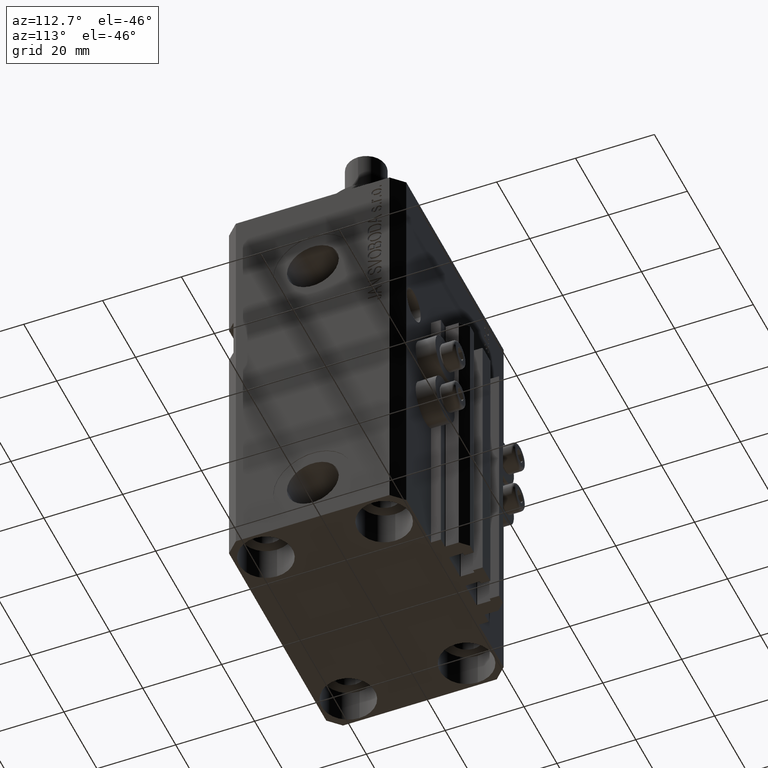
[diagram: clean part render]
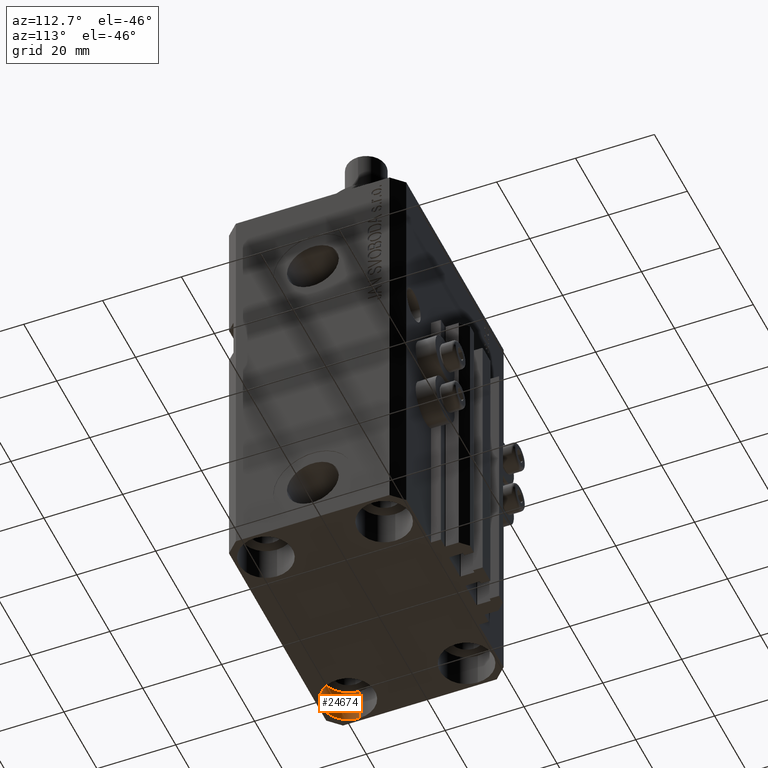
[diagram: same view with one face highlighted and labeled with its STEP entity id]
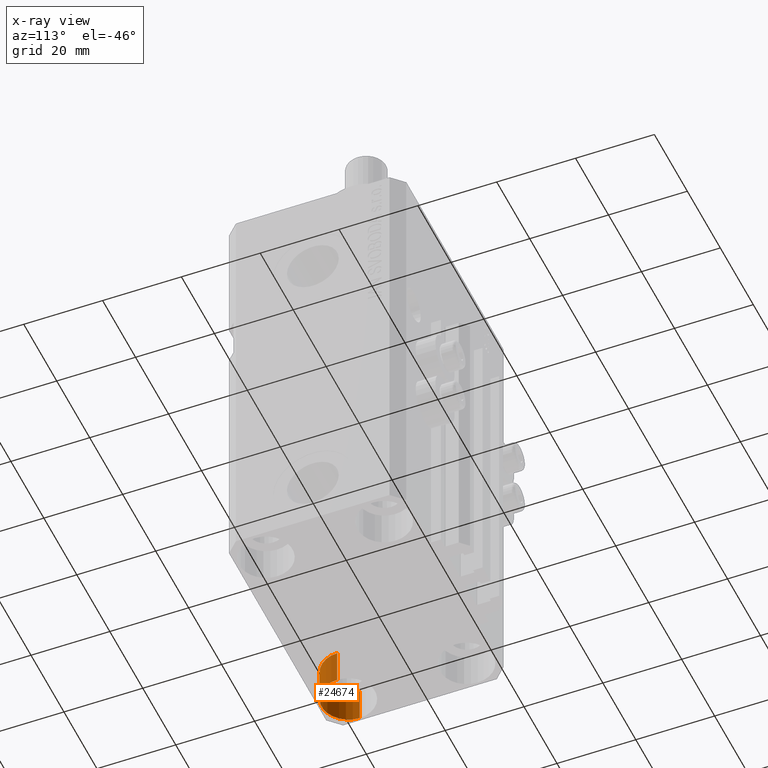
[diagram: x-ray of the same camera — body ghosted, the highlighted face saturated]
A machine part, auxiliary view. The second image highlights one B-rep face of the part: STEP entity #24674.
The next image is the same camera in x-ray: the body ghosted, the highlighted face saturated — about 0% of this face is hidden behind the body in this view.
In plain terms, the highlighted cylindrical surface (edge-blend (fillet) strip) has radius 6.75 mm, axis along (-0, -0, -1).
Its self-contained STEP definition (entity closure, byte-faithful):
#934 = DIRECTION ( 'NONE',  ( -0.000000000000000000, -0.000000000000000000, -1.000000000000000000 ) ) ;
#1125 = CARTESIAN_POINT ( 'NONE',  ( -25.00000000000000355, -15.00000000000000000, -98.00000000000000000 ) ) ;
#1412 = CARTESIAN_POINT ( 'NONE',  ( -18.24999999995846167, -15.00000000000000000, -98.00000000000000000 ) ) ;
#2086 = DIRECTION ( 'NONE',  ( -0.000000000000000000, -0.000000000000000000, -1.000000000000000000 ) ) ;
#2545 = EDGE_CURVE ( 'NONE', #9394, #34390, #28287, .T. ) ;
#5935 = EDGE_CURVE ( 'NONE', #38449, #34393, #37140, .T. ) ;
#7540 = DIRECTION ( 'NONE',  ( -0.000000000000000000, -0.000000000000000000, 1.000000000000000000 ) ) ;
#7761 = CIRCLE ( 'NONE', #13287, 6.750000000041541881 ) ;
#9197 = DIRECTION ( 'NONE',  ( -0.000000000000000000, -0.000000000000000000, 1.000000000000000000 ) ) ;
#9394 = VERTEX_POINT ( 'NONE', #12488 ) ;
#12488 = CARTESIAN_POINT ( 'NONE',  ( -18.24999999995845812, -15.00000000000000000, -98.00000000000000000 ) ) ;
#13287 = AXIS2_PLACEMENT_3D ( 'NONE', #47318, #9197, #36330 ) ;
#16377 = ORIENTED_EDGE ( 'NONE', *, *, #24947, .T. ) ;
#16653 = VECTOR ( 'NONE', #934, 1000.000000000000000 ) ;
#18352 = VECTOR ( 'NONE', #40143, 1000.000000000000000 ) ;
#18995 = DIRECTION ( 'NONE',  ( 1.000000000000000000, 0.000000000000000000, 0.000000000000000000 ) ) ;
#23543 = AXIS2_PLACEMENT_3D ( 'NONE', #1125, #2086, #35959 ) ;
#24674 = ADVANCED_FACE ( 'NONE', ( #42226 ), #43201, .F. ) ;
#24947 = EDGE_CURVE ( 'NONE', #38449, #9394, #27518, .T. ) ;
#27206 = CARTESIAN_POINT ( 'NONE',  ( -25.00000000000000355, -15.00000000000000000, -98.00000000000000000 ) ) ;
#27518 = CIRCLE ( 'NONE', #33837, 6.750000000041541881 ) ;
#28287 = LINE ( 'NONE', #1412, #16653 ) ;
#29901 = CARTESIAN_POINT ( 'NONE',  ( -31.75000000004154899, -15.00000000000000000, -98.00000000000000000 ) ) ;
#30409 = ORIENTED_EDGE ( 'NONE', *, *, #35952, .F. ) ;
#33837 = AXIS2_PLACEMENT_3D ( 'NONE', #27206, #7540, #18995 ) ;
#34390 = VERTEX_POINT ( 'NONE', #40849 ) ;
#34393 = VERTEX_POINT ( 'NONE', #48585 ) ;
#35952 = EDGE_CURVE ( 'NONE', #34393, #34390, #7761, .T. ) ;
#35959 = DIRECTION ( 'NONE',  ( -1.000000000000000000, 0.000000000000000000, 0.000000000000000000 ) ) ;
#36330 = DIRECTION ( 'NONE',  ( 1.000000000000000000, 0.000000000000000000, 0.000000000000000000 ) ) ;
#37140 = LINE ( 'NONE', #43880, #18352 ) ;
#38449 = VERTEX_POINT ( 'NONE', #29901 ) ;
#40143 = DIRECTION ( 'NONE',  ( -0.000000000000000000, -0.000000000000000000, -1.000000000000000000 ) ) ;
#40640 = ORIENTED_EDGE ( 'NONE', *, *, #2545, .T. ) ;
#40849 = CARTESIAN_POINT ( 'NONE',  ( -18.24999999995845812, -15.00000000000000000, -107.0000000000000000 ) ) ;
#42226 = FACE_OUTER_BOUND ( 'NONE', #48736, .T. ) ;
#43201 = CYLINDRICAL_SURFACE ( 'NONE', #23543, 6.750000000041545434 ) ;
#43880 = CARTESIAN_POINT ( 'NONE',  ( -31.75000000004154899, -15.00000000000000000, -98.00000000000000000 ) ) ;
#44214 = ORIENTED_EDGE ( 'NONE', *, *, #5935, .F. ) ;
#47318 = CARTESIAN_POINT ( 'NONE',  ( -25.00000000000000355, -15.00000000000000000, -107.0000000000000000 ) ) ;
#48585 = CARTESIAN_POINT ( 'NONE',  ( -31.75000000004154899, -15.00000000000000000, -107.0000000000000000 ) ) ;
#48736 = EDGE_LOOP ( 'NONE', ( #16377, #40640, #30409, #44214 ) ) ;